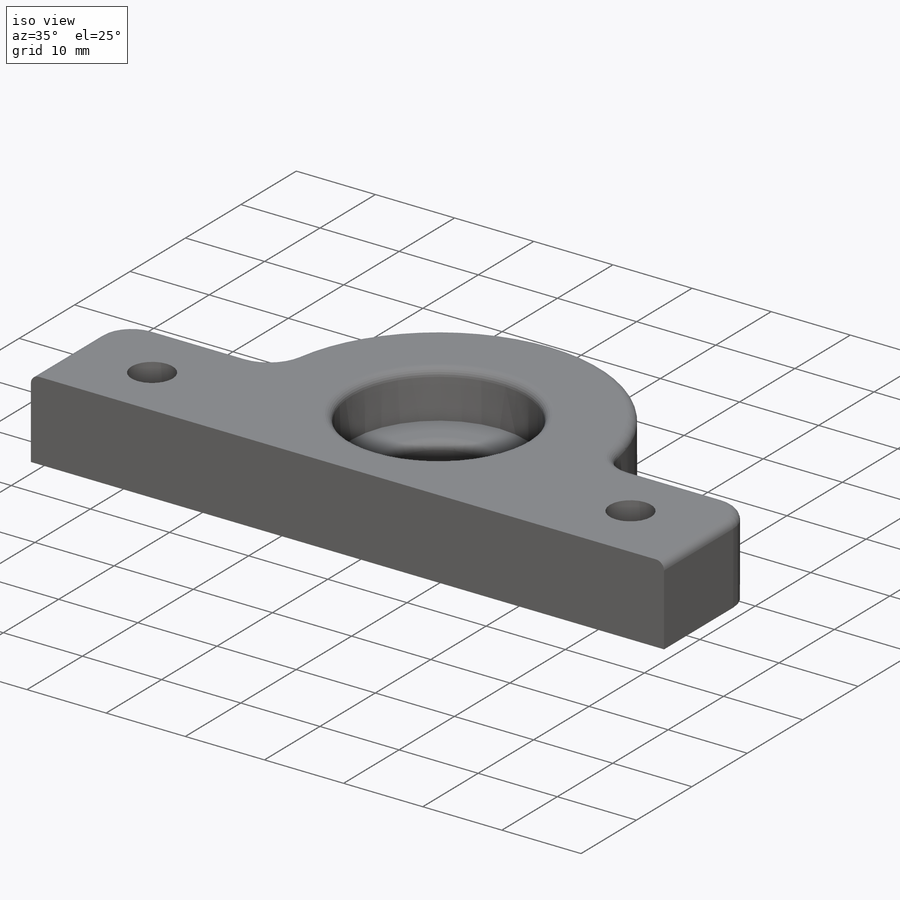
[diagram: iso view]
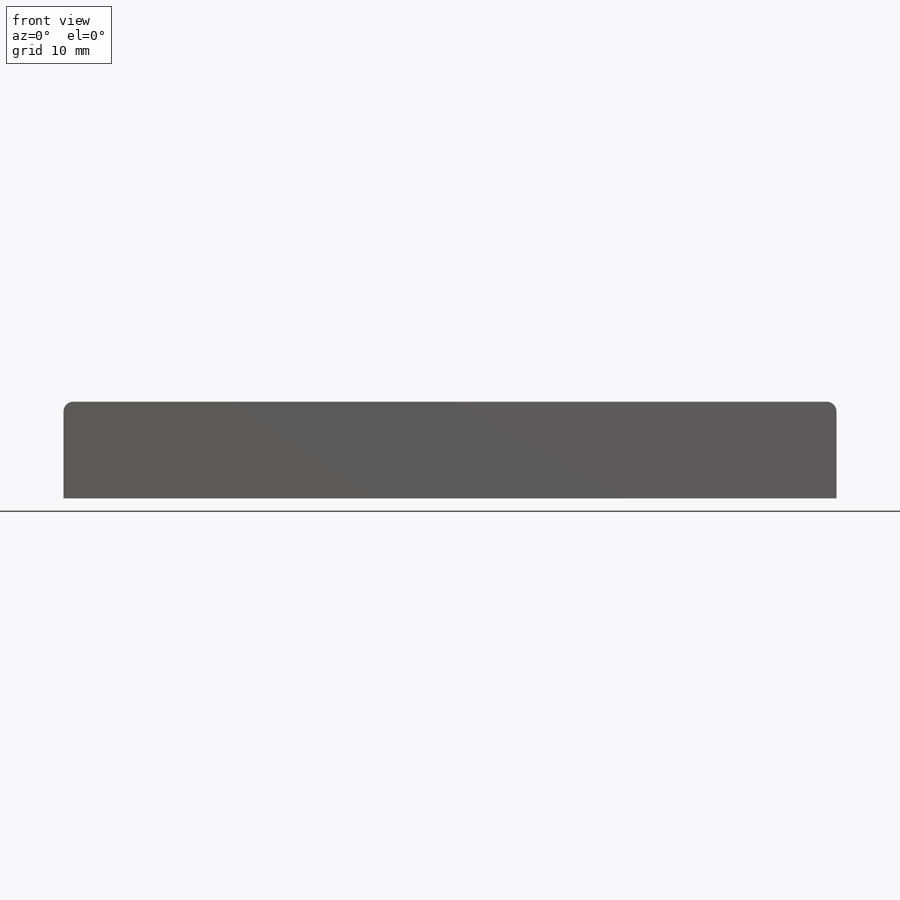
[diagram: front view]
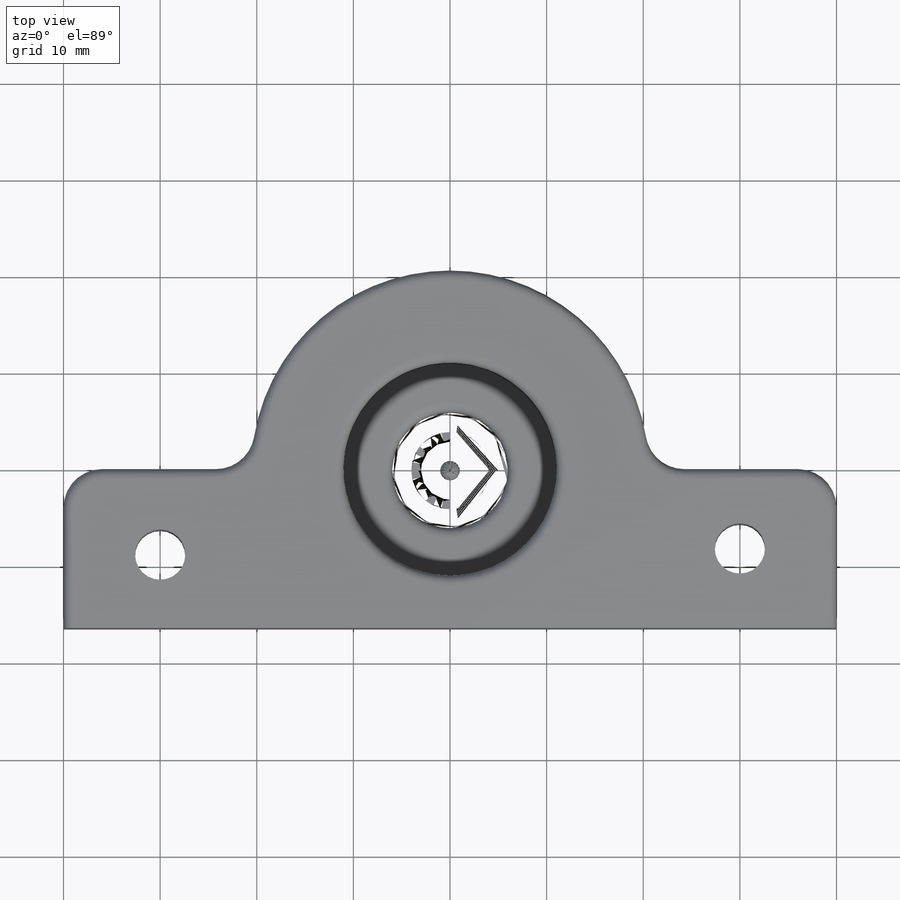
[diagram: top view]
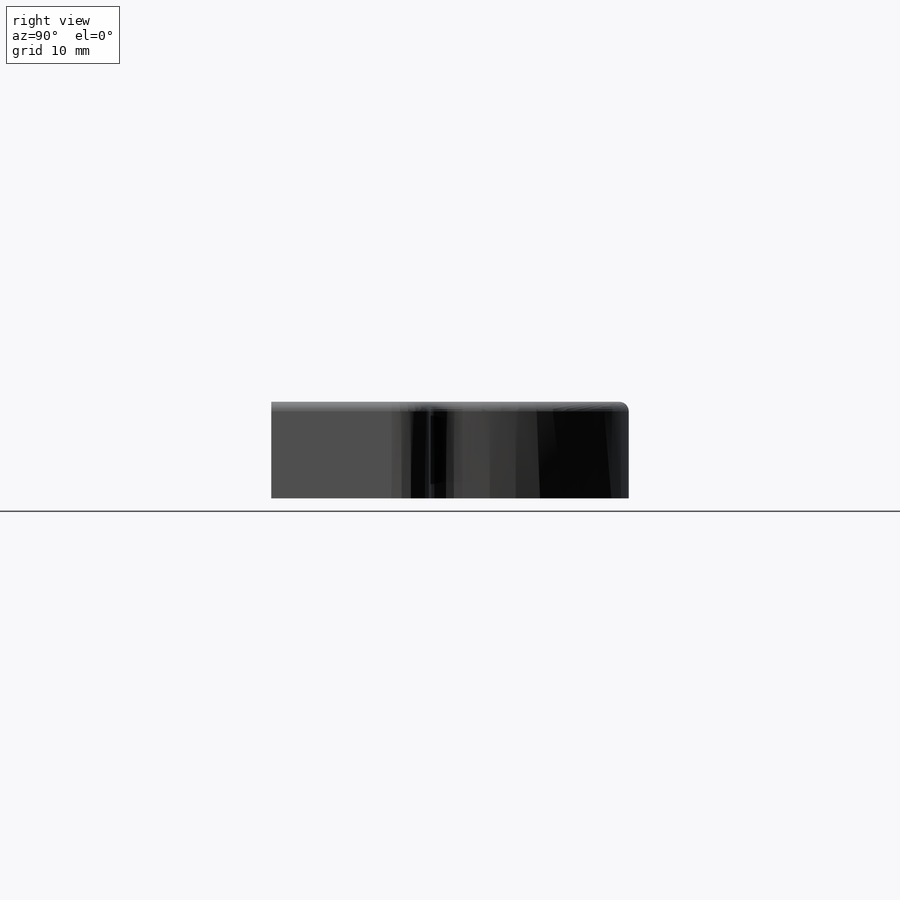
[diagram: right view]
SOLIDWORKS PART (.sldprt)
format: sldprt  version: not decoded by parser v0  size: 332,288 bytes
history: native  units: mm
features: sketch x3, extrude x2, fillet x2, material x1, cut_extrude x1 (+13 scaffold rows collapsed)
feature tree (22):
  scaffold x13  (default folders/planes/origin — collapsed)
  material  "ABS"
  sketch  "Sketch1"  dims[c1.D1=22.05mm c1.D2=20.0mm c1.D3=20.0mm c2.D2=9.525mm c2.D3=~16.45412mm c2.D4=80.0mm c2.D5=16.0mm]
  extrude  "Boss-Extrude1"  Depth=10mm
  sketch  "Sketch3"  dims[D1=22.05mm D2=12.0mm]
  extrude  "Boss-Extrude2"  Depth=4mm
  fillet  "Fillet1"  Radius=4mm
  fillet  "Fillet2"  Radius=1mm
  sketch  "Sketch4"  dims[c1.D1=5.2mm c1.D2=5.2mm c1.D3=5.0mm c1.D4=5.0mm c2.D3=60.0mm c2.D4=30.0mm]
  cut_extrude  "Cut-Extrude1"  [1 undecoded]
decode coverage: 7 of 8 modeling features carry decoded parameters
note: ~ marks probable driven/reference dimensions
note: 1 parameter value undecoded
note: suppression state not decoded; provenance and decode notes live in map.json
